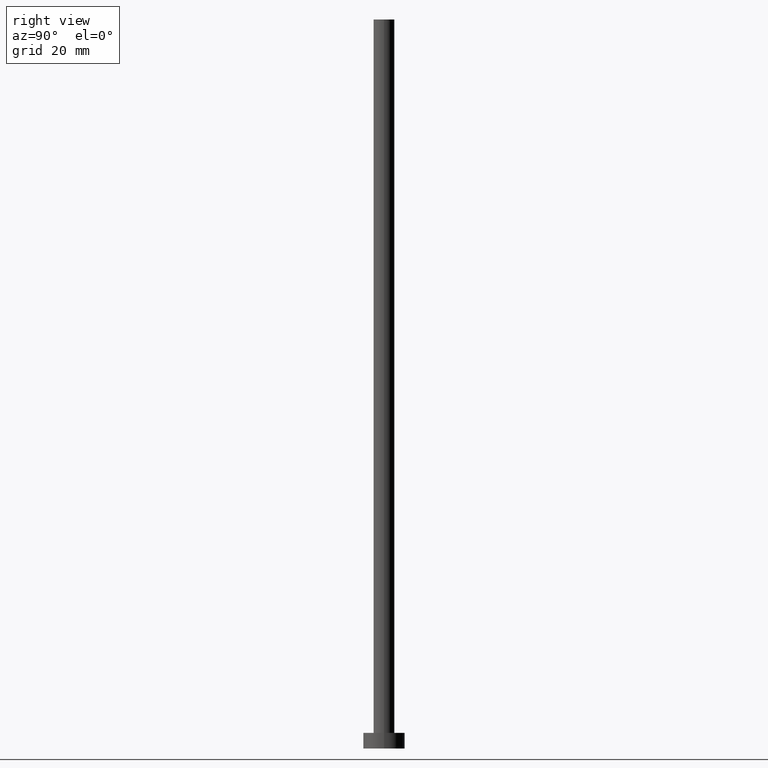
[diagram: clean part render]
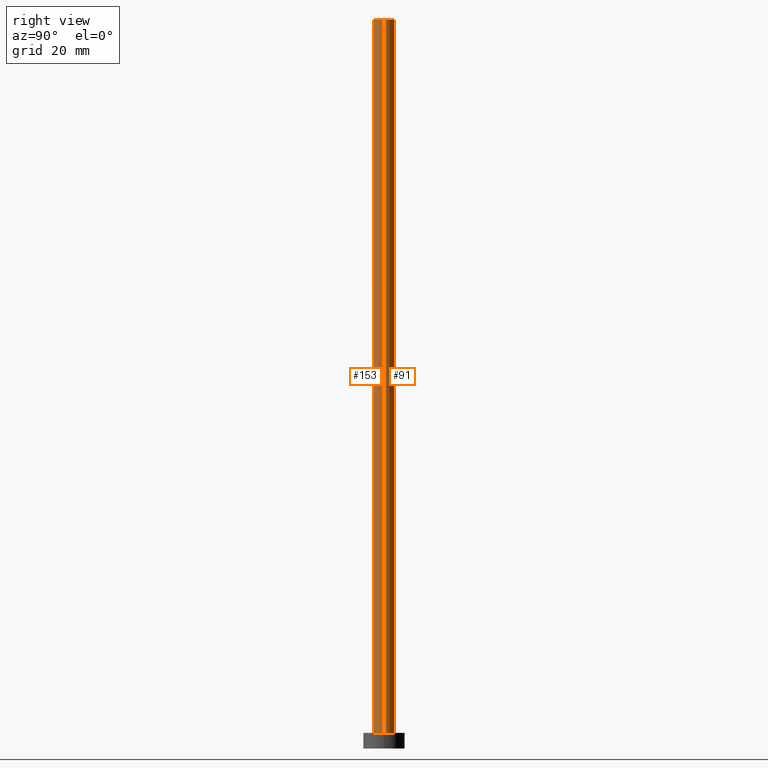
[diagram: same view with one multi-face feature highlighted, each face labeled with its STEP entity id]
A machine part, right view. The highlighted faces form ONE feature: a constant-radius fillet chain: 2 tangent blend faces with common blend radius 2 mm. The faces share edges in the B-rep.
Their STEP definitions:
[1] entity #153 (Cylinder):
#8 = CARTESIAN_POINT ( 'NONE',  ( 2.000000000000000000, 2.449293598294706414E-16, 140.0000000000000000 ) ) ;
#14 = VERTEX_POINT ( 'NONE', #19 ) ;
#19 = CARTESIAN_POINT ( 'NONE',  ( 2.000000000000000000, 2.449293598294706414E-16, 140.0000000000000000 ) ) ;
#21 = AXIS2_PLACEMENT_3D ( 'NONE', #152, #164, #250 ) ;
#23 = CARTESIAN_POINT ( 'NONE',  ( 0.000000000000000000, 0.000000000000000000, 3.000000000000000000 ) ) ;
#36 = EDGE_CURVE ( 'NONE', #194, #140, #105, .T. ) ;
#37 = DIRECTION ( 'NONE',  ( 1.000000000000000000, 0.000000000000000000, 0.000000000000000000 ) ) ;
#45 = EDGE_CURVE ( 'NONE', #140, #171, #110, .T. ) ;
#48 = CARTESIAN_POINT ( 'NONE',  ( 2.000000000000000000, 2.449293598294706414E-16, 3.000000000000000000 ) ) ;
#56 = ORIENTED_EDGE ( 'NONE', *, *, #45, .T. ) ;
#57 = FACE_OUTER_BOUND ( 'NONE', #179, .T. ) ;
#61 = DIRECTION ( 'NONE',  ( 0.000000000000000000, 0.000000000000000000, 1.000000000000000000 ) ) ;
#64 = CARTESIAN_POINT ( 'NONE',  ( 0.000000000000000000, 0.000000000000000000, 140.0000000000000000 ) ) ;
#65 = EDGE_CURVE ( 'NONE', #194, #14, #246, .T. ) ;
#83 = DIRECTION ( 'NONE',  ( -0.000000000000000000, -0.000000000000000000, -1.000000000000000000 ) ) ;
#92 = CARTESIAN_POINT ( 'NONE',  ( -2.000000000000000000, 0.000000000000000000, 140.0000000000000000 ) ) ;
#105 = LINE ( 'NONE', #214, #125 ) ;
#110 = CIRCLE ( 'NONE', #175, 2.000000000000000000 ) ;
#123 = LINE ( 'NONE', #8, #224 ) ;
#125 = VECTOR ( 'NONE', #83, 1000.000000000000000 ) ;
#128 = CYLINDRICAL_SURFACE ( 'NONE', #21, 2.000000000000000000 ) ;
#132 = CARTESIAN_POINT ( 'NONE',  ( -2.000000000000000000, 0.000000000000000000, 3.000000000000000000 ) ) ;
#140 = VERTEX_POINT ( 'NONE', #132 ) ;
#141 = DIRECTION ( 'NONE',  ( 1.000000000000000000, 0.000000000000000000, 0.000000000000000000 ) ) ;
#152 = CARTESIAN_POINT ( 'NONE',  ( 0.000000000000000000, 0.000000000000000000, 140.0000000000000000 ) ) ;
#153 = ADVANCED_FACE ( 'NONE', ( #57 ), #128, .T. ) ;
#164 = DIRECTION ( 'NONE',  ( -0.000000000000000000, -0.000000000000000000, -1.000000000000000000 ) ) ;
#171 = VERTEX_POINT ( 'NONE', #48 ) ;
#175 = AXIS2_PLACEMENT_3D ( 'NONE', #23, #241, #37 ) ;
#177 = ORIENTED_EDGE ( 'NONE', *, *, #203, .F. ) ;
#179 = EDGE_LOOP ( 'NONE', ( #177, #192, #227, #56 ) ) ;
#182 = AXIS2_PLACEMENT_3D ( 'NONE', #64, #61, #141 ) ;
#192 = ORIENTED_EDGE ( 'NONE', *, *, #65, .F. ) ;
#194 = VERTEX_POINT ( 'NONE', #92 ) ;
#203 = EDGE_CURVE ( 'NONE', #14, #171, #123, .T. ) ;
#214 = CARTESIAN_POINT ( 'NONE',  ( -2.000000000000000000, 0.000000000000000000, 140.0000000000000000 ) ) ;
#224 = VECTOR ( 'NONE', #239, 1000.000000000000000 ) ;
#227 = ORIENTED_EDGE ( 'NONE', *, *, #36, .T. ) ;
#239 = DIRECTION ( 'NONE',  ( -0.000000000000000000, -0.000000000000000000, -1.000000000000000000 ) ) ;
#241 = DIRECTION ( 'NONE',  ( 0.000000000000000000, 0.000000000000000000, 1.000000000000000000 ) ) ;
#246 = CIRCLE ( 'NONE', #182, 2.000000000000000000 ) ;
#250 = DIRECTION ( 'NONE',  ( -1.000000000000000000, 0.000000000000000000, 0.000000000000000000 ) ) ;
[2] entity #91 (Cylinder):
#1 = AXIS2_PLACEMENT_3D ( 'NONE', #230, #71, #149 ) ;
#8 = CARTESIAN_POINT ( 'NONE',  ( 2.000000000000000000, 2.449293598294706414E-16, 140.0000000000000000 ) ) ;
#14 = VERTEX_POINT ( 'NONE', #19 ) ;
#19 = CARTESIAN_POINT ( 'NONE',  ( 2.000000000000000000, 2.449293598294706414E-16, 140.0000000000000000 ) ) ;
#22 = CYLINDRICAL_SURFACE ( 'NONE', #193, 2.000000000000000000 ) ;
#31 = CIRCLE ( 'NONE', #1, 2.000000000000000000 ) ;
#36 = EDGE_CURVE ( 'NONE', #194, #140, #105, .T. ) ;
#46 = DIRECTION ( 'NONE',  ( 0.000000000000000000, 0.000000000000000000, 1.000000000000000000 ) ) ;
#48 = CARTESIAN_POINT ( 'NONE',  ( 2.000000000000000000, 2.449293598294706414E-16, 3.000000000000000000 ) ) ;
#58 = ORIENTED_EDGE ( 'NONE', *, *, #36, .F. ) ;
#71 = DIRECTION ( 'NONE',  ( 0.000000000000000000, 0.000000000000000000, 1.000000000000000000 ) ) ;
#83 = DIRECTION ( 'NONE',  ( -0.000000000000000000, -0.000000000000000000, -1.000000000000000000 ) ) ;
#91 = ADVANCED_FACE ( 'NONE', ( #145 ), #22, .T. ) ;
#92 = CARTESIAN_POINT ( 'NONE',  ( -2.000000000000000000, 0.000000000000000000, 140.0000000000000000 ) ) ;
#105 = LINE ( 'NONE', #214, #125 ) ;
#123 = LINE ( 'NONE', #8, #224 ) ;
#124 = EDGE_CURVE ( 'NONE', #171, #140, #163, .T. ) ;
#125 = VECTOR ( 'NONE', #83, 1000.000000000000000 ) ;
#126 = AXIS2_PLACEMENT_3D ( 'NONE', #247, #46, #162 ) ;
#132 = CARTESIAN_POINT ( 'NONE',  ( -2.000000000000000000, 0.000000000000000000, 3.000000000000000000 ) ) ;
#138 = ORIENTED_EDGE ( 'NONE', *, *, #203, .T. ) ;
#140 = VERTEX_POINT ( 'NONE', #132 ) ;
#145 = FACE_OUTER_BOUND ( 'NONE', #235, .T. ) ;
#149 = DIRECTION ( 'NONE',  ( 1.000000000000000000, 0.000000000000000000, 0.000000000000000000 ) ) ;
#162 = DIRECTION ( 'NONE',  ( 1.000000000000000000, 0.000000000000000000, 0.000000000000000000 ) ) ;
#163 = CIRCLE ( 'NONE', #126, 2.000000000000000000 ) ;
#169 = EDGE_CURVE ( 'NONE', #14, #194, #31, .T. ) ;
#171 = VERTEX_POINT ( 'NONE', #48 ) ;
#193 = AXIS2_PLACEMENT_3D ( 'NONE', #232, #219, #200 ) ;
#194 = VERTEX_POINT ( 'NONE', #92 ) ;
#195 = ORIENTED_EDGE ( 'NONE', *, *, #169, .F. ) ;
#200 = DIRECTION ( 'NONE',  ( -1.000000000000000000, 0.000000000000000000, 0.000000000000000000 ) ) ;
#203 = EDGE_CURVE ( 'NONE', #14, #171, #123, .T. ) ;
#214 = CARTESIAN_POINT ( 'NONE',  ( -2.000000000000000000, 0.000000000000000000, 140.0000000000000000 ) ) ;
#219 = DIRECTION ( 'NONE',  ( -0.000000000000000000, -0.000000000000000000, -1.000000000000000000 ) ) ;
#224 = VECTOR ( 'NONE', #239, 1000.000000000000000 ) ;
#230 = CARTESIAN_POINT ( 'NONE',  ( 0.000000000000000000, 0.000000000000000000, 140.0000000000000000 ) ) ;
#232 = CARTESIAN_POINT ( 'NONE',  ( 0.000000000000000000, 0.000000000000000000, 140.0000000000000000 ) ) ;
#235 = EDGE_LOOP ( 'NONE', ( #195, #138, #254, #58 ) ) ;
#239 = DIRECTION ( 'NONE',  ( -0.000000000000000000, -0.000000000000000000, -1.000000000000000000 ) ) ;
#247 = CARTESIAN_POINT ( 'NONE',  ( 0.000000000000000000, 0.000000000000000000, 3.000000000000000000 ) ) ;
#254 = ORIENTED_EDGE ( 'NONE', *, *, #124, .T. ) ;